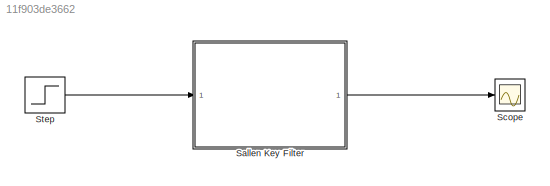
MODEL slx_11f903de3662
KIND model
CONFIG AbsTol = auto
CONFIG FixedStep = auto
CONFIG MaxStep = auto
CONFIG MinStep = auto
CONFIG RelTol = 1e-3
CONFIG SampleTimeConstraint = Unconstrained
CONFIG Solver = ode45
CONFIG SolverMode = Auto
CONFIG SolverName = ode45
CONFIG StartTime = 0.0
CONFIG StopTime = 0.001
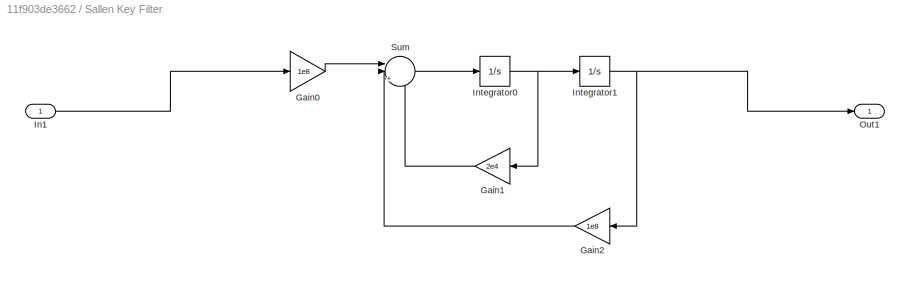
BLOCK [SubSystem] Sallen Key Filter
  Ports = [1, 1]
  RequestExecContextInheritance = off
BLOCK [Gain] Sallen Key Filter/Gain0
  Gain = 1e8
  OutDataTypeStr = Inherit: Inherit via internal rule
  ParamDataTypeStr = Inherit: Inherit via internal rule
  SaturateOnIntegerOverflow = off
BLOCK [Gain] Sallen Key Filter/Gain1
  Gain = 2e4
  OutDataTypeStr = Inherit: Inherit via internal rule
  ParamDataTypeStr = Inherit: Inherit via internal rule
  SaturateOnIntegerOverflow = off
BLOCK [Gain] Sallen Key Filter/Gain2
  Gain = 1e8
  OutDataTypeStr = Inherit: Inherit via internal rule
  ParamDataTypeStr = Inherit: Inherit via internal rule
  SaturateOnIntegerOverflow = off
BLOCK [Inport] Sallen Key Filter/In1
  IconDisplay = Port number
BLOCK [Integrator] Sallen Key Filter/Integrator0
  Ports = [1, 1]
BLOCK [Integrator] Sallen Key Filter/Integrator1
  Ports = [1, 1]
BLOCK [Outport] Sallen Key Filter/Out1
  IconDisplay = Port number
BLOCK [Sum] Sallen Key Filter/Sum
  IconShape = round
  InputSameDT = off
  Inputs = ||+--
  OutDataTypeStr = Inherit: Inherit via internal rule
  Ports = [3, 1]
  SaturateOnIntegerOverflow = off
BLOCK [Scope] Scope
  DataFormat = StructureWithTime
  Floating = off
  NumInputPorts = 1
  Ports = [1]
  SaveToWorkspace = on
  ZoomMode = xonly
BLOCK [Step] Step
  SampleTime = 0
  Time = 0
LINE Sallen Key Filter/Gain0:1 -> Sallen Key Filter/Sum:1
LINE Sallen Key Filter/Gain1:1 -> Sallen Key Filter/Sum:3
LINE Sallen Key Filter/Gain2:1 -> Sallen Key Filter/Sum:2
LINE Sallen Key Filter/In1:1 -> Sallen Key Filter/Gain0:1
NET Sallen Key Filter/Integrator0:1 -> Sallen Key Filter/Gain1:1, Sallen Key Filter/Integrator1:1
NET Sallen Key Filter/Integrator1:1 -> Sallen Key Filter/Gain2:1, Sallen Key Filter/Out1:1
LINE Sallen Key Filter/Sum:1 -> Sallen Key Filter/Integrator0:1
LINE Sallen Key Filter:1 -> Scope:1
LINE Step:1 -> Sallen Key Filter:1
note: NET lines group one-source signal fan-out (src -> all destinations, sorted); 1:1 wires keep LINE
